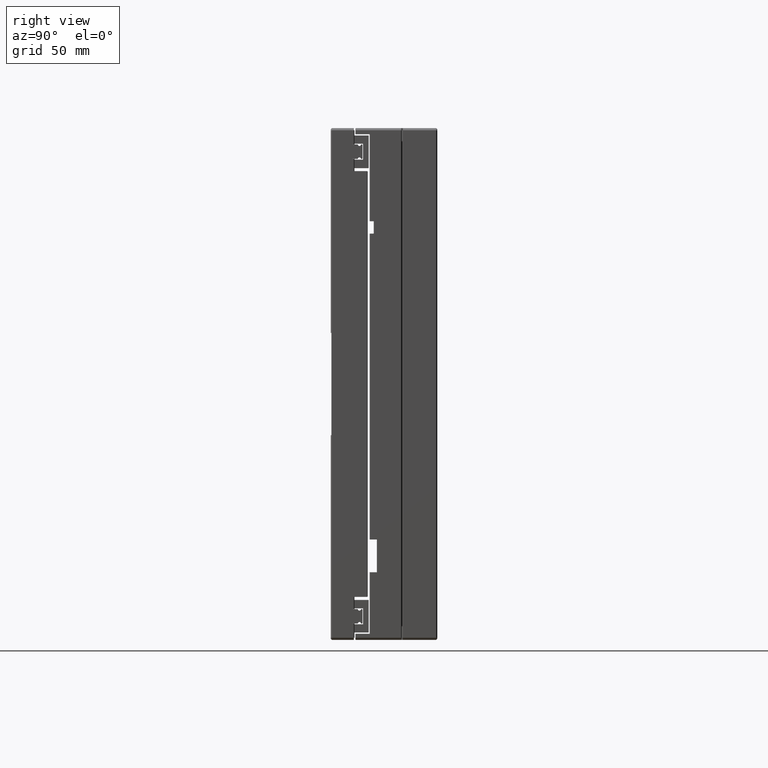
[diagram: clean part render]
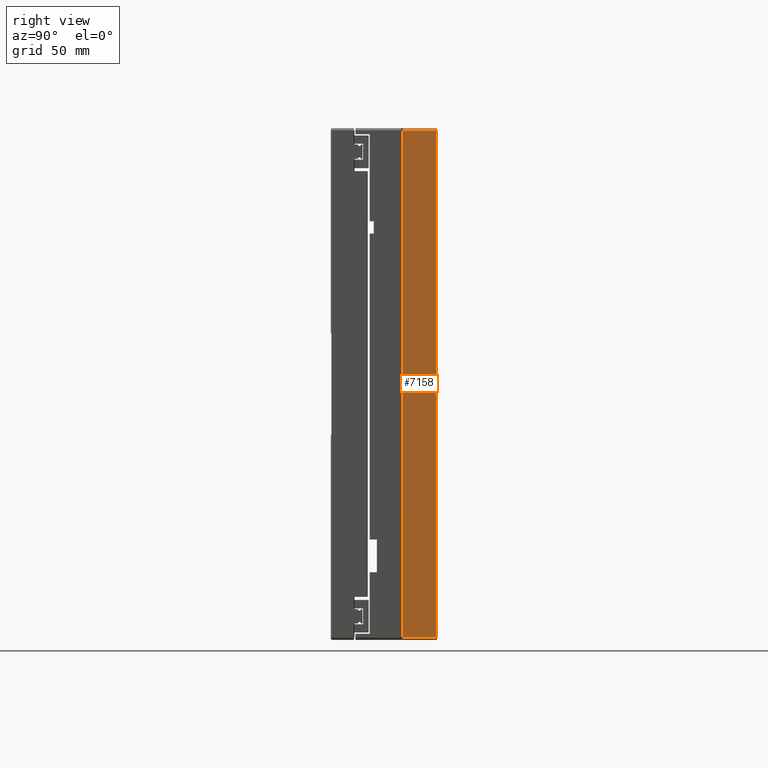
[diagram: same view with one face highlighted and labeled with its STEP entity id]
A machine part, right view. The second image highlights one B-rep face of the part: STEP entity #7158.
In plain terms, the highlighted planar face has unit normal (-1, -0, -0).
Its self-contained STEP definition (entity closure, byte-faithful):
#836 = EDGE_LOOP ( 'NONE', ( #20968, #1218, #15560, #15991 ) ) ;
#1069 = VERTEX_POINT ( 'NONE', #9153 ) ;
#1218 = ORIENTED_EDGE ( 'NONE', *, *, #22433, .T. ) ;
#2510 = EDGE_CURVE ( 'NONE', #23445, #4401, #2885, .T. ) ;
#2669 = VECTOR ( 'NONE', #20915, 1000.000000000000000 ) ;
#2844 = DIRECTION ( 'NONE',  ( -1.990750518977365900E-023, 1.000000000000000000, -7.182434939466754200E-017 ) ) ;
#2885 = LINE ( 'NONE', #4636, #7205 ) ;
#3016 = DIRECTION ( 'NONE',  ( -1.000000000000000000, -1.990750543896442900E-023, -3.469446951953614200E-015 ) ) ;
#3680 = LINE ( 'NONE', #4918, #13959 ) ;
#4078 = EDGE_CURVE ( 'NONE', #1069, #20878, #11793, .T. ) ;
#4401 = VERTEX_POINT ( 'NONE', #5754 ) ;
#4636 = CARTESIAN_POINT ( 'NONE',  ( -52.04777213772161600, 35.00000000000004300, 249.0000000000000600 ) ) ;
#4918 = CARTESIAN_POINT ( 'NONE',  ( -52.04777213772161600, 51.50000000000004300, 249.0000000000000600 ) ) ;
#5754 = CARTESIAN_POINT ( 'NONE',  ( -52.04777213772161600, 35.19999999999996700, 249.0000000000000600 ) ) ;
#5860 = LINE ( 'NONE', #8283, #2669 ) ;
#6988 = DIRECTION ( 'NONE',  ( -3.469446951953614200E-015, 7.182434939466754200E-017, 1.000000000000000000 ) ) ;
#7158 = ADVANCED_FACE ( 'NONE', ( #8783 ), #15833, .F. ) ;
#7205 = VECTOR ( 'NONE', #17513, 1000.000000000000000 ) ;
#8283 = CARTESIAN_POINT ( 'NONE',  ( -52.04777213772161600, 35.19999999999996700, 250.0000000000000000 ) ) ;
#8783 = FACE_OUTER_BOUND ( 'NONE', #836, .T. ) ;
#9153 = CARTESIAN_POINT ( 'NONE',  ( -52.04777213772074200, 35.19999999999995300, 0.9999999999999592500 ) ) ;
#9301 = CARTESIAN_POINT ( 'NONE',  ( -52.04777213772161600, 51.50000000000004300, 249.0000000000000600 ) ) ;
#10440 = CARTESIAN_POINT ( 'NONE',  ( -52.04777213772074200, 35.00000000000002800, 0.9999999999999592500 ) ) ;
#11793 = LINE ( 'NONE', #10440, #13238 ) ;
#13238 = VECTOR ( 'NONE', #21564, 1000.000000000000000 ) ;
#13959 = VECTOR ( 'NONE', #6988, 1000.000000000000000 ) ;
#15560 = ORIENTED_EDGE ( 'NONE', *, *, #4078, .T. ) ;
#15833 = PLANE ( 'NONE',  #20440 ) ;
#15991 = ORIENTED_EDGE ( 'NONE', *, *, #20301, .T. ) ;
#17513 = DIRECTION ( 'NONE',  ( 1.990750518977365900E-023, -1.000000000000000000, 7.182434939466754200E-017 ) ) ;
#20301 = EDGE_CURVE ( 'NONE', #20878, #23445, #3680, .T. ) ;
#20440 = AXIS2_PLACEMENT_3D ( 'NONE', #22867, #3016, #2844 ) ;
#20878 = VERTEX_POINT ( 'NONE', #21415 ) ;
#20915 = DIRECTION ( 'NONE',  ( 3.469446951953614200E-015, -7.182434939466754200E-017, -1.000000000000000000 ) ) ;
#20968 = ORIENTED_EDGE ( 'NONE', *, *, #2510, .T. ) ;
#21415 = CARTESIAN_POINT ( 'NONE',  ( -52.04777213772074200, 51.50000000000002800, 0.9999999999999592500 ) ) ;
#21564 = DIRECTION ( 'NONE',  ( -1.990750518977365900E-023, 1.000000000000000000, -7.182434939466754200E-017 ) ) ;
#22433 = EDGE_CURVE ( 'NONE', #4401, #1069, #5860, .T. ) ;
#22867 = CARTESIAN_POINT ( 'NONE',  ( -52.04777213772161600, 35.00000000000004300, 250.0000000000000000 ) ) ;
#23445 = VERTEX_POINT ( 'NONE', #9301 ) ;